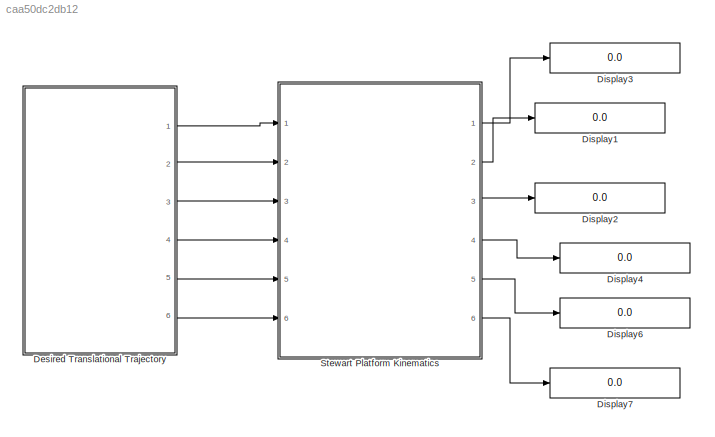
MODEL slx_caa50dc2db12
KIND model
CONFIG AbsTol = auto
CONFIG FixedStep = auto
CONFIG MaxStep = auto
CONFIG MinStep = auto
CONFIG PreLoadFcn = SPParameters;\n
CONFIG RelTol = 1e-3
CONFIG SampleTimeConstraint = Unconstrained
CONFIG Solver = ode45
CONFIG SolverMode = Auto
CONFIG SolverName = ode45
CONFIG StartTime = 0.0
CONFIG StopTime = 10.0
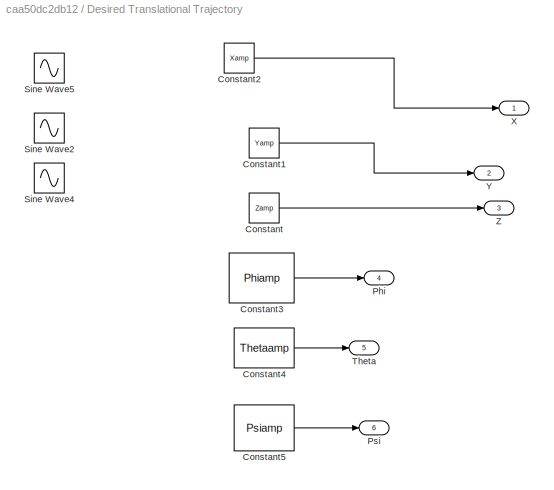
BLOCK [SubSystem] Desired Translational Trajectory
  Ports = [0, 6]
  RequestExecContextInheritance = off
BLOCK [Constant] Desired Translational Trajectory/Constant
  Value = Zamp
BLOCK [Constant] Desired Translational Trajectory/Constant1
  Value = Yamp
BLOCK [Constant] Desired Translational Trajectory/Constant2
  Value = Xamp
BLOCK [Constant] Desired Translational Trajectory/Constant3
  Value = Phiamp
BLOCK [Constant] Desired Translational Trajectory/Constant4
  Value = Thetaamp
BLOCK [Constant] Desired Translational Trajectory/Constant5
  Value = Psiamp
BLOCK [Outport] Desired Translational Trajectory/Phi
  IconDisplay = Port number
  Port = 4
BLOCK [Outport] Desired Translational Trajectory/Psi
  IconDisplay = Port number
  Port = 6
BLOCK [Sin] Desired Translational Trajectory/Sine Wave2
  Amplitude = Yamp
  Frequency = 5
  Ports = [0, 1]
  SampleTime = 0
BLOCK [Sin] Desired Translational Trajectory/Sine Wave4
  Amplitude = Zamp
  Frequency = 5
  Ports = [0, 1]
  SampleTime = 0
BLOCK [Sin] Desired Translational Trajectory/Sine Wave5
  Amplitude = Xamp
  Frequency = 5
  Ports = [0, 1]
  SampleTime = 0
BLOCK [Outport] Desired Translational Trajectory/Theta
  IconDisplay = Port number
  Port = 5
BLOCK [Outport] Desired Translational Trajectory/X
  IconDisplay = Port number
BLOCK [Outport] Desired Translational Trajectory/Y
  IconDisplay = Port number
  Port = 2
BLOCK [Outport] Desired Translational Trajectory/Z
  IconDisplay = Port number
  Port = 3
BLOCK [Display] Display1
  Decimation = 1
  Ports = [1]
BLOCK [Display] Display2
  Decimation = 1
  Ports = [1]
BLOCK [Display] Display3
  Decimation = 1
  Ports = [1]
BLOCK [Display] Display4
  Decimation = 1
  Ports = [1]
BLOCK [Display] Display6
  Decimation = 1
  Ports = [1]
BLOCK [Display] Display7
  Decimation = 1
  Ports = [1]
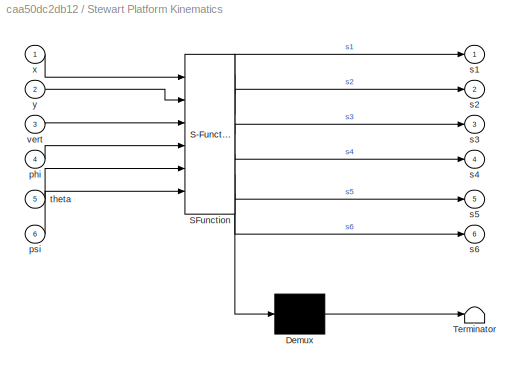
BLOCK [SubSystem] Stewart Platform Kinematics
  ErrorFcn = Stateflow.Translate.translate
  PermitHierarchicalResolution = ExplicitOnly
  Ports = [6, 6]
  RequestExecContextInheritance = off
  SFBlockType = MATLAB Function
  TreatAsAtomicUnit = on
BLOCK [Demux] Stewart Platform Kinematics/ Demux 
  Outputs = 1
  Ports = [1, 1]
BLOCK [S-Function] Stewart Platform Kinematics/ SFunction 
  EnableBusSupport = on
  FunctionName = sf_sfun
  PortCounts = [6 7]
  Ports = [6, 7]
  Tag = Stateflow S-Function July11thSecond 2
BLOCK [Terminator] Stewart Platform Kinematics/ Terminator 
BLOCK [Inport] Stewart Platform Kinematics/phi
  IconDisplay = Port number
  Port = 4
BLOCK [Inport] Stewart Platform Kinematics/psi
  IconDisplay = Port number
  Port = 6
BLOCK [Outport] Stewart Platform Kinematics/s1
  IconDisplay = Port number
BLOCK [Outport] Stewart Platform Kinematics/s2
  IconDisplay = Port number
  Port = 2
BLOCK [Outport] Stewart Platform Kinematics/s3
  IconDisplay = Port number
  Port = 3
BLOCK [Outport] Stewart Platform Kinematics/s4
  IconDisplay = Port number
  Port = 4
BLOCK [Outport] Stewart Platform Kinematics/s5
  IconDisplay = Port number
  Port = 5
BLOCK [Outport] Stewart Platform Kinematics/s6
  IconDisplay = Port number
  Port = 6
BLOCK [Inport] Stewart Platform Kinematics/theta
  IconDisplay = Port number
  Port = 5
BLOCK [Inport] Stewart Platform Kinematics/vert
  IconDisplay = Port number
  Port = 3
BLOCK [Inport] Stewart Platform Kinematics/x
  IconDisplay = Port number
BLOCK [Inport] Stewart Platform Kinematics/y
  IconDisplay = Port number
  Port = 2
LINE Desired Translational Trajectory/Constant1:1 -> Desired Translational Trajectory/Y:1
LINE Desired Translational Trajectory/Constant2:1 -> Desired Translational Trajectory/X:1
LINE Desired Translational Trajectory/Constant3:1 -> Desired Translational Trajectory/Phi:1
LINE Desired Translational Trajectory/Constant4:1 -> Desired Translational Trajectory/Theta:1
LINE Desired Translational Trajectory/Constant5:1 -> Desired Translational Trajectory/Psi:1
LINE Desired Translational Trajectory/Constant:1 -> Desired Translational Trajectory/Z:1
LINE Desired Translational Trajectory:1 -> Stewart Platform Kinematics:1
LINE Desired Translational Trajectory:2 -> Stewart Platform Kinematics:2
LINE Desired Translational Trajectory:3 -> Stewart Platform Kinematics:3
LINE Desired Translational Trajectory:4 -> Stewart Platform Kinematics:4
LINE Desired Translational Trajectory:5 -> Stewart Platform Kinematics:5
LINE Desired Translational Trajectory:6 -> Stewart Platform Kinematics:6
LINE Stewart Platform Kinematics:1 -> Display3:1
LINE Stewart Platform Kinematics:2 -> Display1:1
LINE Stewart Platform Kinematics:3 -> Display2:1
LINE Stewart Platform Kinematics:4 -> Display4:1
LINE Stewart Platform Kinematics:5 -> Display6:1
LINE Stewart Platform Kinematics:6 -> Display7:1
CHART Stewart Platform Kinematics states=1 transitions=1
  STATE_LABEL 'eML_blk_kernel()'
  STATE_LABEL 'SCRIPT:\nfunction [s1,s2,s3,s4,s5,s6] = fcn(x,y,vert,phi,theta,psi)\n\nz=0.293+vert; %20cm is the distance between two platforms\n\n%Define the system parameters\n\n%gammap1 = 53.45 ; % unit in degree\ngammap1=8;\ngammap = [gammap1,120-gammap1, 120+gammap1, -120-gammap1,-120+gammap1,-gammap1];\ngammab1 = 20; % unit in degree %onsidering servo arm length of 4.5cm\n%gammab1 = 21.1495 ; % unit in degree\ngammab ...<+2493ch>'
